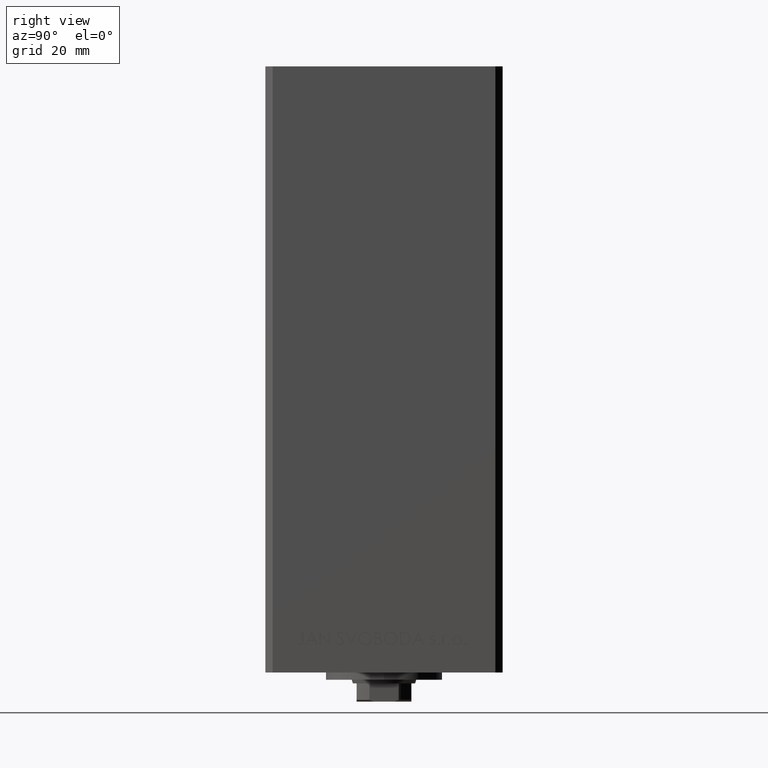
[diagram: clean part render]
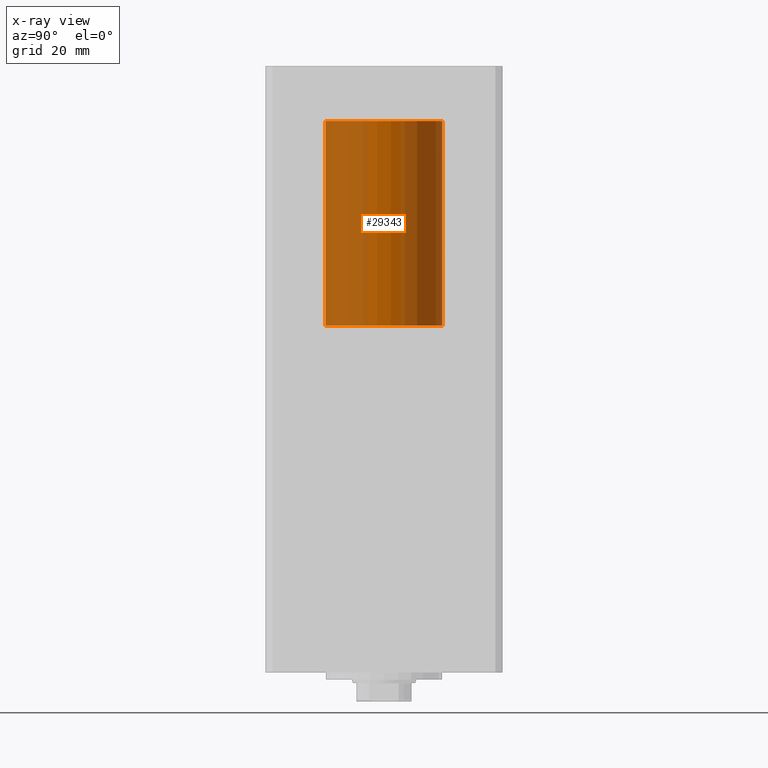
[diagram: x-ray — body ghosted, one internal face saturated and labeled with its STEP entity id]
A machine part, right view, then the same camera in x-ray: the body is ghosted and one INTERNAL B-rep face — a face not visible from any outside direction — is saturated and labeled: STEP entity #29343.
In plain terms, the highlighted cylindrical surface (partial cylindrical patch) has radius 16 mm, axis along (-0, -0, -1).
Its self-contained STEP definition (entity closure, byte-faithful):
#781 = VERTEX_POINT ( 'NONE', #11625 ) ;
#3537 = DIRECTION ( 'NONE',  ( 9.892608450469889463E-18, 1.000000000000000000, 0.000000000000000000 ) ) ;
#4533 = VERTEX_POINT ( 'NONE', #30246 ) ;
#4682 = CARTESIAN_POINT ( 'NONE',  ( -1.582817352075182314E-16, -16.00000000000000000, 1.959434878635765131E-15 ) ) ;
#5265 = CARTESIAN_POINT ( 'NONE',  ( -159.0000000000000000, 16.00000000000000000, 0.000000000000000000 ) ) ;
#6043 = DIRECTION ( 'NONE',  ( 0.000000000000000000, 1.000000000000000000, 0.000000000000000000 ) ) ;
#6667 = VECTOR ( 'NONE', #19210, 1000.000000000000000 ) ;
#6890 = EDGE_CURVE ( 'NONE', #7466, #41850, #16342, .T. ) ;
#7466 = VERTEX_POINT ( 'NONE', #5265 ) ;
#7808 = ORIENTED_EDGE ( 'NONE', *, *, #27691, .T. ) ;
#7885 = ORIENTED_EDGE ( 'NONE', *, *, #6890, .T. ) ;
#8837 = CIRCLE ( 'NONE', #15889, 16.00000000000000000 ) ;
#11625 = CARTESIAN_POINT ( 'NONE',  ( -103.0000000000000000, -16.00000000000000000, 1.959434878635765131E-15 ) ) ;
#14851 = CYLINDRICAL_SURFACE ( 'NONE', #28764, 16.00000000000000000 ) ;
#15889 = AXIS2_PLACEMENT_3D ( 'NONE', #15913, #31661, #6043 ) ;
#15913 = CARTESIAN_POINT ( 'NONE',  ( -103.0000000000000000, -7.157848055784085830E-16, 0.000000000000000000 ) ) ;
#16342 = CIRCLE ( 'NONE', #33659, 16.00000000000000000 ) ;
#19210 = DIRECTION ( 'NONE',  ( 1.000000000000000000, -9.892608450469889463E-18, -0.000000000000000000 ) ) ;
#21447 = EDGE_CURVE ( 'NONE', #4533, #781, #8837, .T. ) ;
#23860 = LINE ( 'NONE', #28512, #27227 ) ;
#26197 = CARTESIAN_POINT ( 'NONE',  ( 0.000000000000000000, -1.734723475976807094E-15, 0.000000000000000000 ) ) ;
#27227 = VECTOR ( 'NONE', #39821, 1000.000000000000000 ) ;
#27691 = EDGE_CURVE ( 'NONE', #41850, #781, #46040, .T. ) ;
#28512 = CARTESIAN_POINT ( 'NONE',  ( 1.582817352075182314E-16, 16.00000000000000000, 0.000000000000000000 ) ) ;
#28764 = AXIS2_PLACEMENT_3D ( 'NONE', #26197, #29878, #3537 ) ;
#29343 = ADVANCED_FACE ( 'NONE', ( #32588 ), #14851, .T. ) ;
#29878 = DIRECTION ( 'NONE',  ( 1.000000000000000000, -9.892608450469889463E-18, -0.000000000000000000 ) ) ;
#30246 = CARTESIAN_POINT ( 'NONE',  ( -103.0000000000000000, 16.00000000000000000, 0.000000000000000000 ) ) ;
#30340 = EDGE_LOOP ( 'NONE', ( #7885, #7808, #39063, #42616 ) ) ;
#30474 = DIRECTION ( 'NONE',  ( 1.000000000000000000, -9.892608450469889463E-18, -0.000000000000000000 ) ) ;
#31519 = EDGE_CURVE ( 'NONE', #7466, #4533, #23860, .T. ) ;
#31661 = DIRECTION ( 'NONE',  ( 1.000000000000000000, -9.892608450469889463E-18, -0.000000000000000000 ) ) ;
#32588 = FACE_OUTER_BOUND ( 'NONE', #30340, .T. ) ;
#33659 = AXIS2_PLACEMENT_3D ( 'NONE', #41549, #30474, #38579 ) ;
#38579 = DIRECTION ( 'NONE',  ( 0.000000000000000000, 1.000000000000000000, 0.000000000000000000 ) ) ;
#39063 = ORIENTED_EDGE ( 'NONE', *, *, #21447, .F. ) ;
#39821 = DIRECTION ( 'NONE',  ( 1.000000000000000000, -9.892608450469889463E-18, -0.000000000000000000 ) ) ;
#41549 = CARTESIAN_POINT ( 'NONE',  ( -159.0000000000000000, -1.617987323520945635E-16, 0.000000000000000000 ) ) ;
#41850 = VERTEX_POINT ( 'NONE', #42361 ) ;
#42361 = CARTESIAN_POINT ( 'NONE',  ( -159.0000000000000000, -16.00000000000000000, 1.959434878635765131E-15 ) ) ;
#42616 = ORIENTED_EDGE ( 'NONE', *, *, #31519, .F. ) ;
#46040 = LINE ( 'NONE', #4682, #6667 ) ;